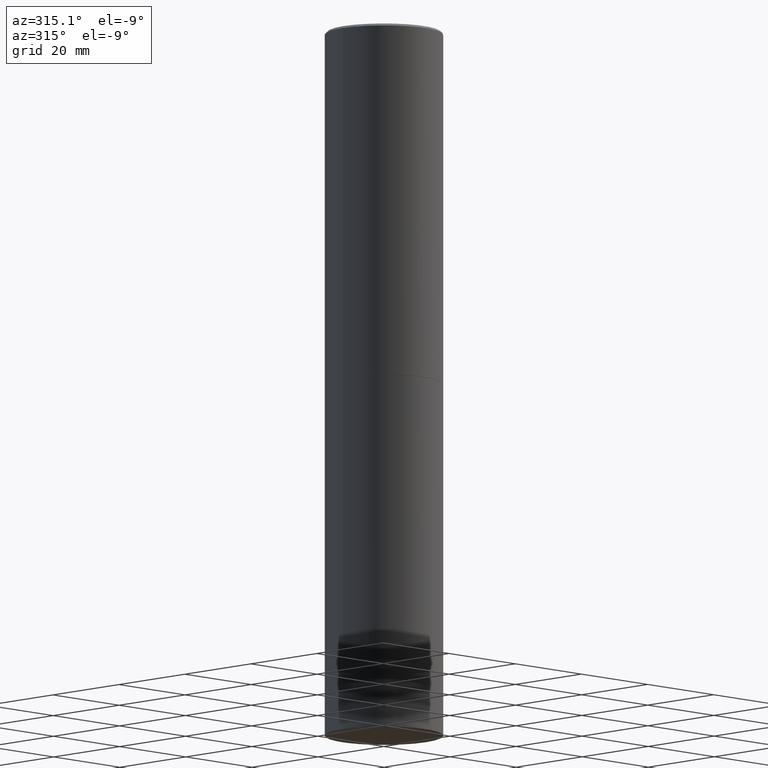
[diagram: clean part render]
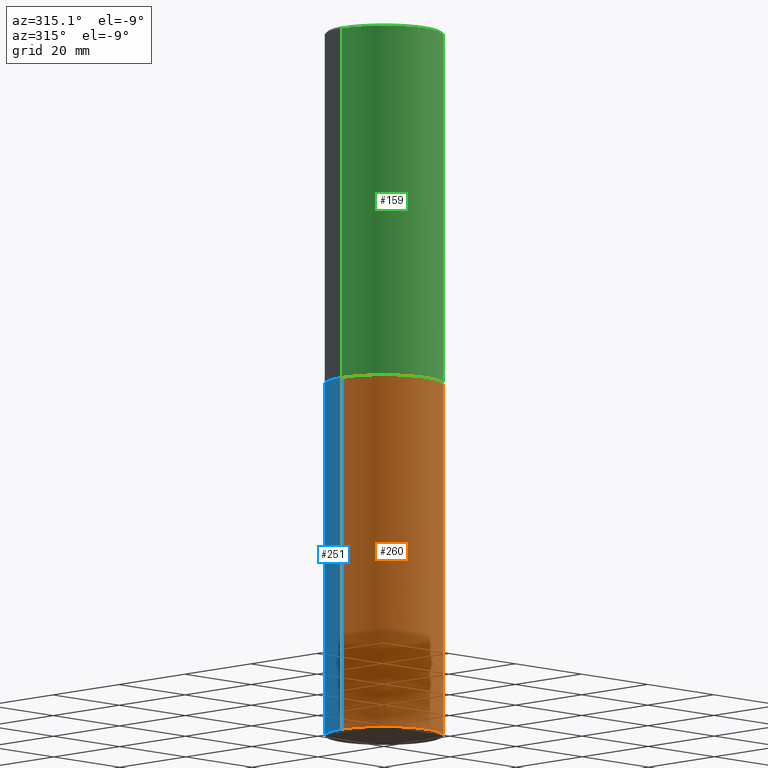
[diagram: same view with three faces highlighted in distinct colors, each labeled with its STEP entity id]
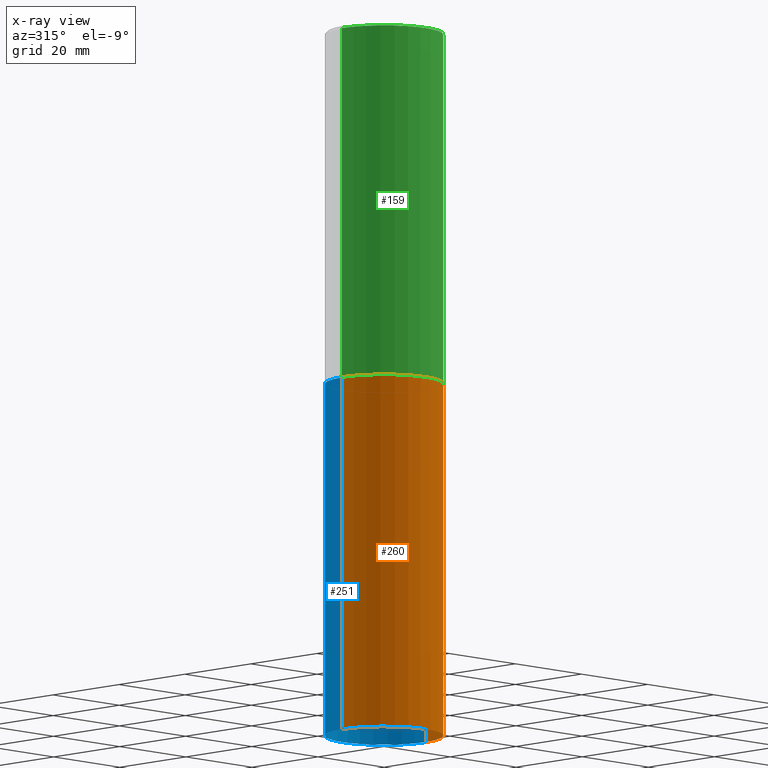
[diagram: x-ray of the same camera — body ghosted, the three highlighted faces saturated]
A machine part, auxiliary view with three faces highlighted in distinct colors.
The next image is the same camera in x-ray (body ghosted, the three faces saturated) — at least one of them is partly hidden behind the body in this view.
Their STEP definitions:

[orange] entity #260 — the highlighted cylindrical surface (partial cylindrical patch) has radius 12.7 mm, axis along (-0, 0, 1).
#4 = VERTEX_POINT ( 'NONE', #69 ) ;
#29 = ORIENTED_EDGE ( 'NONE', *, *, #194, .T. ) ;
#38 = FACE_OUTER_BOUND ( 'NONE', #187, .T. ) ;
#40 = DIRECTION ( 'NONE',  ( -2.445468806185136597E-29, 3.491481338843145583E-15, 1.000000000000000000 ) ) ;
#42 = ORIENTED_EDGE ( 'NONE', *, *, #326, .F. ) ;
#48 = VECTOR ( 'NONE', #343, 39.37007874015748143 ) ;
#49 = CARTESIAN_POINT ( 'NONE',  ( 0.5000000000000000000, -3.491481338843133355E-15, 2.438088387897967896E-29 ) ) ;
#63 = EDGE_CURVE ( 'NONE', #294, #124, #83, .T. ) ;
#69 = CARTESIAN_POINT ( 'NONE',  ( 0.5000000000000000000, -2.444036937190200606E-14, -6.000000000000000888 ) ) ;
#72 = CIRCLE ( 'NONE', #222, 0.5000000000000000000 ) ;
#74 = AXIS2_PLACEMENT_3D ( 'NONE', #188, #40, #99 ) ;
#83 = LINE ( 'NONE', #341, #48 ) ;
#99 = DIRECTION ( 'NONE',  ( 1.000000000000000000, -6.982962677686262766E-15, 0.000000000000000000 ) ) ;
#124 = VERTEX_POINT ( 'NONE', #170 ) ;
#126 = CARTESIAN_POINT ( 'NONE',  ( 0.5000000000000000000, -1.396592535537257129E-14, -3.000000000000000444 ) ) ;
#170 = CARTESIAN_POINT ( 'NONE',  ( -0.5000000000000000000, -1.215895234599365439E-14, -3.000000000000000444 ) ) ;
#177 = ORIENTED_EDGE ( 'NONE', *, *, #285, .T. ) ;
#180 = CYLINDRICAL_SURFACE ( 'NONE', #336, 0.5000000000000000000 ) ;
#187 = EDGE_LOOP ( 'NONE', ( #269, #177, #29, #42 ) ) ;
#188 = CARTESIAN_POINT ( 'NONE',  ( 1.467281283711081958E-28, -2.094888803305887271E-14, -6.000000000000000888 ) ) ;
#194 = EDGE_CURVE ( 'NONE', #4, #300, #195, .T. ) ;
#195 = LINE ( 'NONE', #49, #205 ) ;
#205 = VECTOR ( 'NONE', #233, 39.37007874015748143 ) ;
#212 = DIRECTION ( 'NONE',  ( 1.000000000000000000, -6.982962677686266711E-15, 0.000000000000000000 ) ) ;
#222 = AXIS2_PLACEMENT_3D ( 'NONE', #306, #324, #212 ) ;
#233 = DIRECTION ( 'NONE',  ( -2.445468806185136877E-29, 3.491481338843145188E-15, 1.000000000000000000 ) ) ;
#250 = CARTESIAN_POINT ( 'NONE',  ( -0.5000000000000000000, -1.215895234599365439E-14, -6.000000000000000888 ) ) ;
#260 = ADVANCED_FACE ( 'NONE', ( #38 ), #180, .T. ) ;
#263 = DIRECTION ( 'NONE',  ( -2.445468806185136597E-29, 3.491481338843145583E-15, 1.000000000000000000 ) ) ;
#269 = ORIENTED_EDGE ( 'NONE', *, *, #63, .F. ) ;
#272 = CARTESIAN_POINT ( 'NONE',  ( 0.000000000000000000, 0.000000000000000000, 0.000000000000000000 ) ) ;
#277 = CIRCLE ( 'NONE', #74, 0.5000000000000000000 ) ;
#285 = EDGE_CURVE ( 'NONE', #294, #4, #277, .T. ) ;
#294 = VERTEX_POINT ( 'NONE', #250 ) ;
#300 = VERTEX_POINT ( 'NONE', #126 ) ;
#306 = CARTESIAN_POINT ( 'NONE',  ( 7.336406418555409790E-29, -1.047444401652943635E-14, -3.000000000000000444 ) ) ;
#324 = DIRECTION ( 'NONE',  ( -2.445468806185136597E-29, 3.491481338843145583E-15, 1.000000000000000000 ) ) ;
#326 = EDGE_CURVE ( 'NONE', #124, #300, #72, .T. ) ;
#335 = DIRECTION ( 'NONE',  ( 1.000000000000000000, -6.982962677686266711E-15, 4.876176775795935793E-29 ) ) ;
#336 = AXIS2_PLACEMENT_3D ( 'NONE', #272, #263, #335 ) ;
#341 = CARTESIAN_POINT ( 'NONE',  ( -0.5000000000000000000, 3.552713678800500929E-15, -2.459467545127452891E-29 ) ) ;
#343 = DIRECTION ( 'NONE',  ( -2.445468806185136877E-29, 3.491481338843145188E-15, 1.000000000000000000 ) ) ;

[blue] entity #251 — the highlighted cylindrical surface (partial cylindrical patch) has radius 12.7 mm, axis along (-0, 0, 1).
#4 = VERTEX_POINT ( 'NONE', #69 ) ;
#6 = AXIS2_PLACEMENT_3D ( 'NONE', #21, #345, #122 ) ;
#19 = CARTESIAN_POINT ( 'NONE',  ( 1.467281283711081958E-28, -2.094888803305887271E-14, -6.000000000000000888 ) ) ;
#21 = CARTESIAN_POINT ( 'NONE',  ( 7.336406418555409790E-29, -1.047444401652943635E-14, -3.000000000000000444 ) ) ;
#47 = EDGE_CURVE ( 'NONE', #4, #294, #239, .T. ) ;
#48 = VECTOR ( 'NONE', #343, 39.37007874015748143 ) ;
#49 = CARTESIAN_POINT ( 'NONE',  ( 0.5000000000000000000, -3.491481338843133355E-15, 2.438088387897967896E-29 ) ) ;
#57 = FACE_OUTER_BOUND ( 'NONE', #141, .T. ) ;
#60 = ORIENTED_EDGE ( 'NONE', *, *, #63, .T. ) ;
#63 = EDGE_CURVE ( 'NONE', #294, #124, #83, .T. ) ;
#69 = CARTESIAN_POINT ( 'NONE',  ( 0.5000000000000000000, -2.444036937190200606E-14, -6.000000000000000888 ) ) ;
#83 = LINE ( 'NONE', #341, #48 ) ;
#85 = CARTESIAN_POINT ( 'NONE',  ( 0.000000000000000000, 0.000000000000000000, 0.000000000000000000 ) ) ;
#122 = DIRECTION ( 'NONE',  ( 1.000000000000000000, -6.982962677686266711E-15, 0.000000000000000000 ) ) ;
#124 = VERTEX_POINT ( 'NONE', #170 ) ;
#126 = CARTESIAN_POINT ( 'NONE',  ( 0.5000000000000000000, -1.396592535537257129E-14, -3.000000000000000444 ) ) ;
#132 = EDGE_CURVE ( 'NONE', #300, #124, #254, .T. ) ;
#141 = EDGE_LOOP ( 'NONE', ( #235, #60, #207, #146 ) ) ;
#146 = ORIENTED_EDGE ( 'NONE', *, *, #194, .F. ) ;
#170 = CARTESIAN_POINT ( 'NONE',  ( -0.5000000000000000000, -1.215895234599365439E-14, -3.000000000000000444 ) ) ;
#193 = DIRECTION ( 'NONE',  ( 1.000000000000000000, -6.982962677686262766E-15, 0.000000000000000000 ) ) ;
#194 = EDGE_CURVE ( 'NONE', #4, #300, #195, .T. ) ;
#195 = LINE ( 'NONE', #49, #205 ) ;
#200 = DIRECTION ( 'NONE',  ( -2.445468806185136597E-29, 3.491481338843145583E-15, 1.000000000000000000 ) ) ;
#205 = VECTOR ( 'NONE', #233, 39.37007874015748143 ) ;
#207 = ORIENTED_EDGE ( 'NONE', *, *, #132, .F. ) ;
#233 = DIRECTION ( 'NONE',  ( -2.445468806185136877E-29, 3.491481338843145188E-15, 1.000000000000000000 ) ) ;
#235 = ORIENTED_EDGE ( 'NONE', *, *, #47, .T. ) ;
#239 = CIRCLE ( 'NONE', #338, 0.5000000000000000000 ) ;
#250 = CARTESIAN_POINT ( 'NONE',  ( -0.5000000000000000000, -1.215895234599365439E-14, -6.000000000000000888 ) ) ;
#251 = ADVANCED_FACE ( 'NONE', ( #57 ), #264, .T. ) ;
#254 = CIRCLE ( 'NONE', #6, 0.5000000000000000000 ) ;
#264 = CYLINDRICAL_SURFACE ( 'NONE', #332, 0.5000000000000000000 ) ;
#268 = DIRECTION ( 'NONE',  ( 1.000000000000000000, -6.982962677686266711E-15, 4.876176775795935793E-29 ) ) ;
#294 = VERTEX_POINT ( 'NONE', #250 ) ;
#300 = VERTEX_POINT ( 'NONE', #126 ) ;
#315 = DIRECTION ( 'NONE',  ( -2.445468806185136597E-29, 3.491481338843145583E-15, 1.000000000000000000 ) ) ;
#332 = AXIS2_PLACEMENT_3D ( 'NONE', #85, #315, #268 ) ;
#338 = AXIS2_PLACEMENT_3D ( 'NONE', #19, #200, #193 ) ;
#341 = CARTESIAN_POINT ( 'NONE',  ( -0.5000000000000000000, 3.552713678800500929E-15, -2.459467545127452891E-29 ) ) ;
#343 = DIRECTION ( 'NONE',  ( -2.445468806185136877E-29, 3.491481338843145188E-15, 1.000000000000000000 ) ) ;
#345 = DIRECTION ( 'NONE',  ( -2.445468806185136597E-29, 3.491481338843145583E-15, 1.000000000000000000 ) ) ;

[green] entity #159 — the highlighted cylindrical surface (partial cylindrical patch) has radius 12.7 mm, axis along (-0, 0, 1).
#3 = ORIENTED_EDGE ( 'NONE', *, *, #358, .F. ) ;
#7 = VERTEX_POINT ( 'NONE', #151 ) ;
#15 = ORIENTED_EDGE ( 'NONE', *, *, #211, .T. ) ;
#37 = CIRCLE ( 'NONE', #54, 0.5000000000000000000 ) ;
#52 = CARTESIAN_POINT ( 'NONE',  ( 0.000000000000000000, 0.000000000000000000, 0.000000000000000000 ) ) ;
#54 = AXIS2_PLACEMENT_3D ( 'NONE', #88, #317, #287 ) ;
#88 = CARTESIAN_POINT ( 'NONE',  ( 7.333960949749226429E-29, -1.047095253519059492E-14, -2.999000000000000554 ) ) ;
#105 = ORIENTED_EDGE ( 'NONE', *, *, #364, .T. ) ;
#107 = CARTESIAN_POINT ( 'NONE',  ( 0.5000000000000000000, -1.396243387403372828E-14, -2.999000000000000554 ) ) ;
#115 = CARTESIAN_POINT ( 'NONE',  ( -0.4999999999999997780, 3.552713678800499352E-15, -2.459467545127452050E-29 ) ) ;
#116 = EDGE_LOOP ( 'NONE', ( #275, #105, #15, #3 ) ) ;
#127 = EDGE_CURVE ( 'NONE', #238, #7, #292, .T. ) ;
#135 = FACE_OUTER_BOUND ( 'NONE', #116, .T. ) ;
#137 = DIRECTION ( 'NONE',  ( 1.000000000000000000, -6.982962677686266711E-15, 0.000000000000000000 ) ) ;
#147 = CARTESIAN_POINT ( 'NONE',  ( 0.4999999999999996114, -3.500078625662626318E-15, -0.02000000000000010797 ) ) ;
#151 = CARTESIAN_POINT ( 'NONE',  ( -0.4999999999999996114, 3.421651712066267296E-15, -0.02000000000000010797 ) ) ;
#159 = ADVANCED_FACE ( 'NONE', ( #135 ), #232, .T. ) ;
#164 = DIRECTION ( 'NONE',  ( -2.445468806185136597E-29, 3.491481338843145583E-15, 1.000000000000000000 ) ) ;
#165 = LINE ( 'NONE', #337, #365 ) ;
#201 = AXIS2_PLACEMENT_3D ( 'NONE', #224, #164, #137 ) ;
#211 = EDGE_CURVE ( 'NONE', #265, #320, #165, .T. ) ;
#224 = CARTESIAN_POINT ( 'NONE',  ( 4.890937612370299433E-31, -6.982962677686328587E-17, -0.02000000000000010797 ) ) ;
#232 = CYLINDRICAL_SURFACE ( 'NONE', #246, 0.4999999999999997780 ) ;
#238 = VERTEX_POINT ( 'NONE', #321 ) ;
#244 = DIRECTION ( 'NONE',  ( -2.445468806185136877E-29, 3.491481338843145188E-15, 1.000000000000000000 ) ) ;
#246 = AXIS2_PLACEMENT_3D ( 'NONE', #52, #311, #283 ) ;
#261 = VECTOR ( 'NONE', #244, 39.37007874015748143 ) ;
#265 = VERTEX_POINT ( 'NONE', #107 ) ;
#275 = ORIENTED_EDGE ( 'NONE', *, *, #127, .F. ) ;
#280 = DIRECTION ( 'NONE',  ( -2.445468806185136877E-29, 3.491481338843145188E-15, 1.000000000000000000 ) ) ;
#283 = DIRECTION ( 'NONE',  ( 1.000000000000000000, -6.982962677686266711E-15, 4.876176775795935793E-29 ) ) ;
#287 = DIRECTION ( 'NONE',  ( 1.000000000000000000, -6.982962677686266711E-15, 0.000000000000000000 ) ) ;
#290 = CIRCLE ( 'NONE', #201, 0.4999999999999996114 ) ;
#292 = LINE ( 'NONE', #115, #261 ) ;
#311 = DIRECTION ( 'NONE',  ( -2.445468806185136597E-29, 3.491481338843145583E-15, 1.000000000000000000 ) ) ;
#317 = DIRECTION ( 'NONE',  ( -2.445468806185136597E-29, 3.491481338843145583E-15, 1.000000000000000000 ) ) ;
#320 = VERTEX_POINT ( 'NONE', #147 ) ;
#321 = CARTESIAN_POINT ( 'NONE',  ( -0.5000000000000000000, -1.717677402183225026E-15, -2.999000000000000554 ) ) ;
#337 = CARTESIAN_POINT ( 'NONE',  ( 0.4999999999999997780, -3.491481338843131778E-15, 2.438088387897966775E-29 ) ) ;
#358 = EDGE_CURVE ( 'NONE', #7, #320, #290, .T. ) ;
#364 = EDGE_CURVE ( 'NONE', #238, #265, #37, .T. ) ;
#365 = VECTOR ( 'NONE', #280, 39.37007874015748143 ) ;